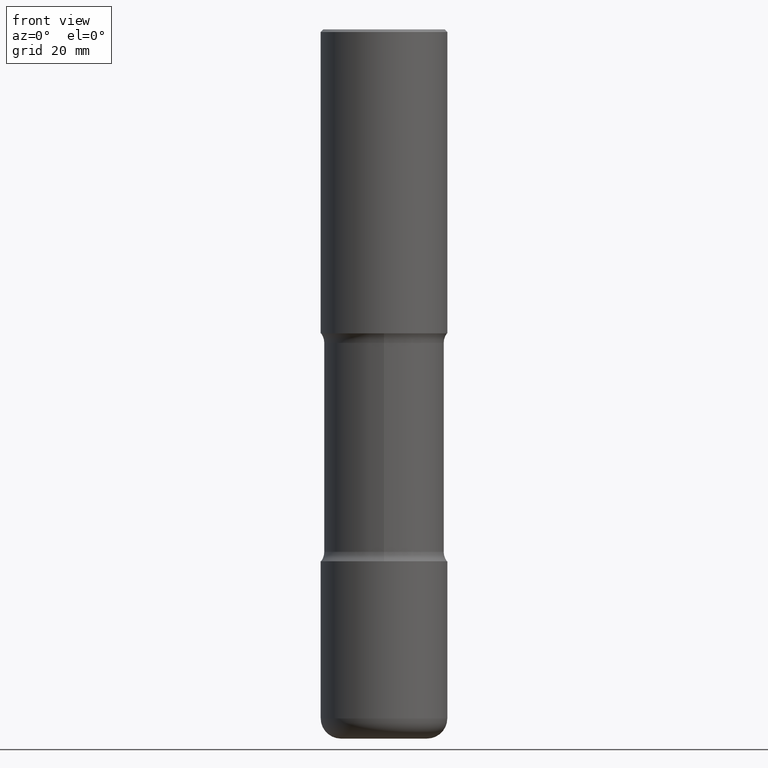
[diagram: clean part render]
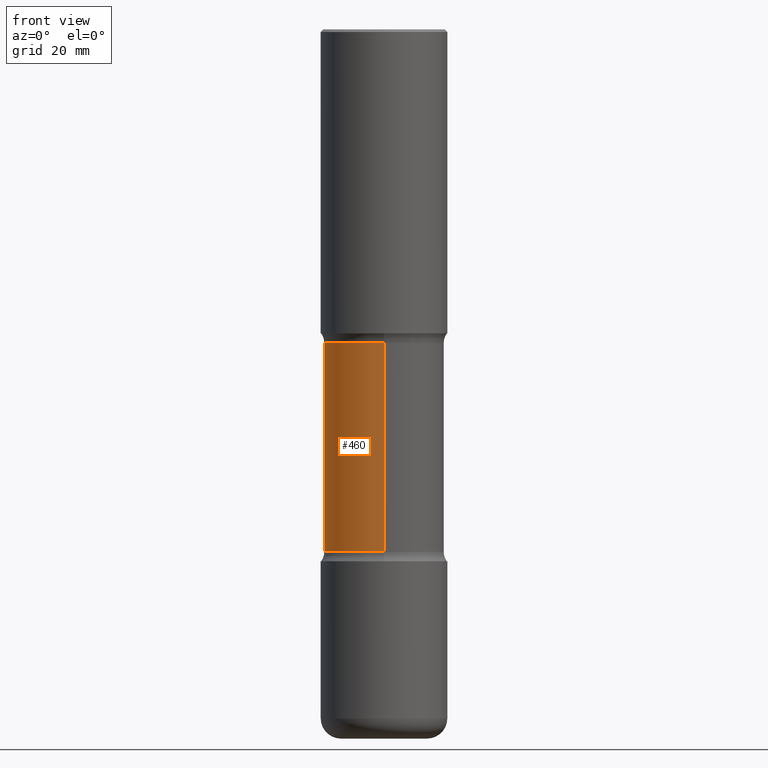
[diagram: same view with one face highlighted and labeled with its STEP entity id]
A machine part, front view. The second image highlights one B-rep face of the part: STEP entity #460.
In plain terms, the highlighted cylindrical surface (partial cylindrical patch) has radius 11.8745 mm, axis along (0, -0, -1).
Its self-contained STEP definition (entity closure, byte-faithful):
#3 = CARTESIAN_POINT ( 'NONE',  ( -3.291838451780624866E-15, -0.4675000000000141265, -4.059268949423745276 ) ) ;
#13 = CARTESIAN_POINT ( 'NONE',  ( 3.264535051818464504E-15, 0.4674999999999808198, -5.511800000000000921 ) ) ;
#19 = VECTOR ( 'NONE', #485, 39.37007874015748143 ) ;
#23 = VERTEX_POINT ( 'NONE', #102 ) ;
#27 = ORIENTED_EDGE ( 'NONE', *, *, #455, .T. ) ;
#42 = DIRECTION ( 'NONE',  ( 6.982962677686266711E-15, 1.000000000000000000, -3.506115072082477581E-15 ) ) ;
#72 = VERTEX_POINT ( 'NONE', #475 ) ;
#75 = VECTOR ( 'NONE', #489, 39.37007874015748143 ) ;
#89 = EDGE_LOOP ( 'NONE', ( #126, #27, #253, #509 ) ) ;
#101 = FACE_OUTER_BOUND ( 'NONE', #89, .T. ) ;
#102 = CARTESIAN_POINT ( 'NONE',  ( 3.264535051818428216E-15, 0.4674999999999857048, -4.059268949423747941 ) ) ;
#108 = CARTESIAN_POINT ( 'NONE',  ( 5.816995885266152861E-29, -8.711087037968711425E-15, -2.436731050576253388 ) ) ;
#125 = AXIS2_PLACEMENT_3D ( 'NONE', #108, #360, #263 ) ;
#126 = ORIENTED_EDGE ( 'NONE', *, *, #327, .F. ) ;
#137 = CARTESIAN_POINT ( 'NONE',  ( 9.920581329765965517E-29, -1.418178960422549608E-14, -4.059268949423747053 ) ) ;
#178 = CARTESIAN_POINT ( 'NONE',  ( -3.207282813958053791E-15, -0.4675000000000189004, -5.511799999999999145 ) ) ;
#179 = DIRECTION ( 'NONE',  ( 6.982962677686265922E-15, 1.000000000000000000, -2.337410048054985186E-15 ) ) ;
#188 = VERTEX_POINT ( 'NONE', #3 ) ;
#222 = CARTESIAN_POINT ( 'NONE',  ( -3.291838451780669043E-15, -0.4675000000000086864, -2.436731050576252056 ) ) ;
#223 = EDGE_CURVE ( 'NONE', #188, #23, #510, .T. ) ;
#225 = LINE ( 'NONE', #13, #19 ) ;
#253 = ORIENTED_EDGE ( 'NONE', *, *, #471, .T. ) ;
#263 = DIRECTION ( 'NONE',  ( 6.982962677686266711E-15, 1.000000000000000000, -3.506115072082477581E-15 ) ) ;
#290 = DIRECTION ( 'NONE',  ( 2.529115312138246887E-29, -3.371694781454833941E-15, -1.000000000000000000 ) ) ;
#318 = AXIS2_PLACEMENT_3D ( 'NONE', #437, #448, #179 ) ;
#327 = EDGE_CURVE ( 'NONE', #339, #188, #486, .T. ) ;
#339 = VERTEX_POINT ( 'NONE', #222 ) ;
#360 = DIRECTION ( 'NONE',  ( 2.529115312138246887E-29, -3.371694781454833941E-15, -1.000000000000000000 ) ) ;
#402 = CIRCLE ( 'NONE', #125, 0.4674999999999999156 ) ;
#437 = CARTESIAN_POINT ( 'NONE',  ( 1.359419985113462274E-28, -1.907928096735455584E-14, -5.511800000000000033 ) ) ;
#448 = DIRECTION ( 'NONE',  ( 2.529115312138246887E-29, -3.371694781454833941E-15, -1.000000000000000000 ) ) ;
#455 = EDGE_CURVE ( 'NONE', #339, #72, #402, .T. ) ;
#460 = ADVANCED_FACE ( 'NONE', ( #101 ), #491, .T. ) ;
#471 = EDGE_CURVE ( 'NONE', #72, #23, #225, .T. ) ;
#475 = CARTESIAN_POINT ( 'NONE',  ( 3.264535051818387195E-15, 0.4674999999999912004, -2.436731050576255164 ) ) ;
#485 = DIRECTION ( 'NONE',  ( 2.529115312138246887E-29, -3.371694781454833546E-15, -1.000000000000000000 ) ) ;
#486 = LINE ( 'NONE', #178, #75 ) ;
#489 = DIRECTION ( 'NONE',  ( 2.529115312138246887E-29, -3.371694781454833546E-15, -1.000000000000000000 ) ) ;
#491 = CYLINDRICAL_SURFACE ( 'NONE', #318, 0.4674999999999998601 ) ;
#495 = AXIS2_PLACEMENT_3D ( 'NONE', #137, #290, #42 ) ;
#509 = ORIENTED_EDGE ( 'NONE', *, *, #223, .F. ) ;
#510 = CIRCLE ( 'NONE', #495, 0.4674999999999999156 ) ;